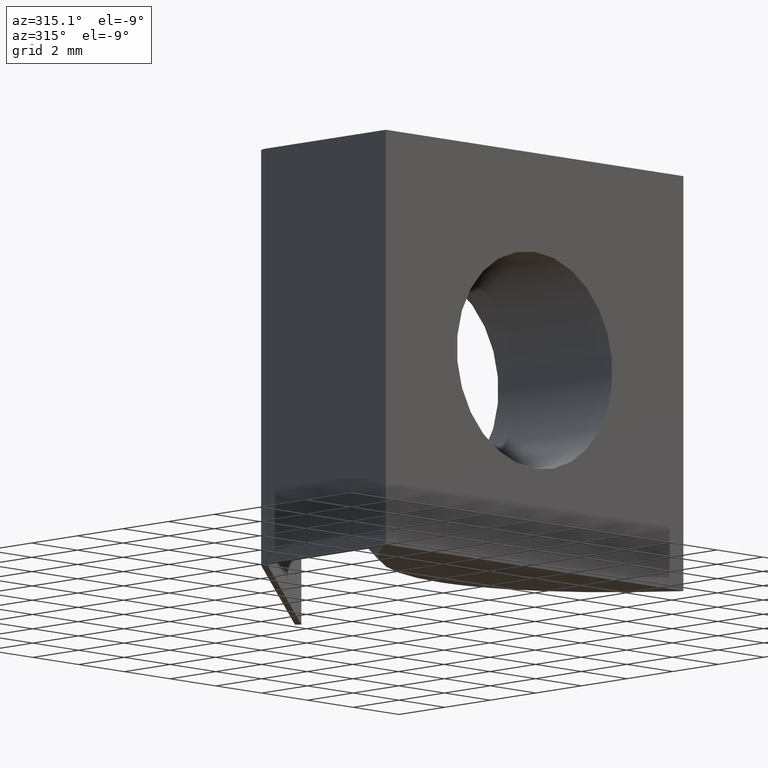
[diagram: clean part render]
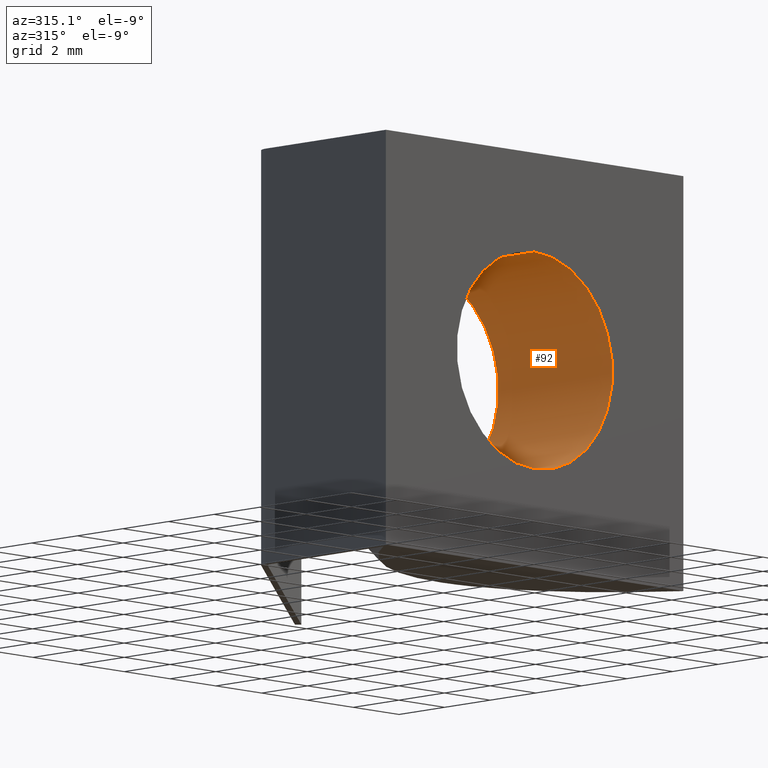
[diagram: same view with one face highlighted and labeled with its STEP entity id]
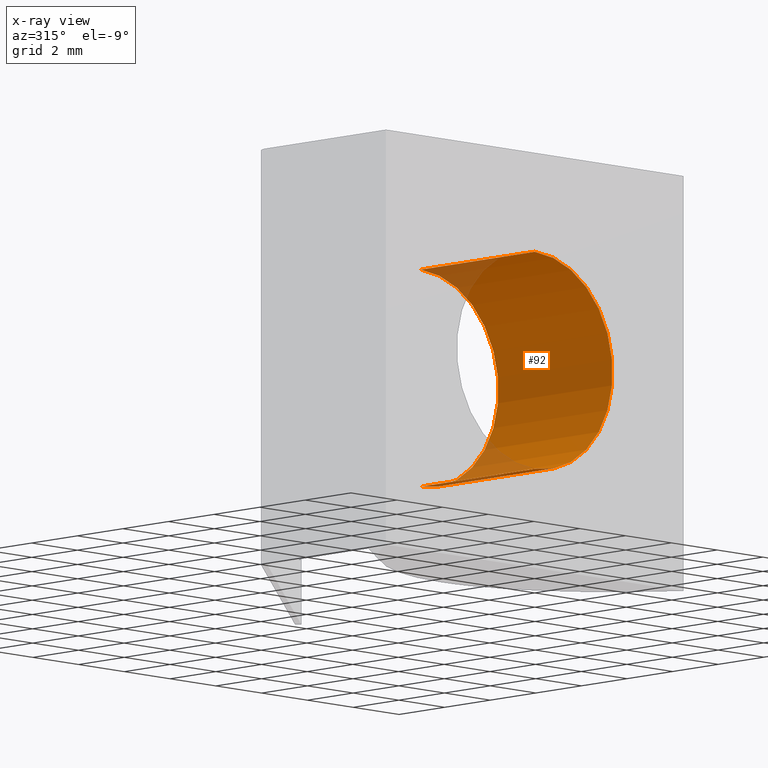
[diagram: x-ray of the same camera — body ghosted, the highlighted face saturated]
A machine part, auxiliary view. The second image highlights one B-rep face of the part: STEP entity #92.
The next image is the same camera in x-ray: the body ghosted, the highlighted face saturated — about 10% of this face is hidden behind the body in this view.
In plain terms, the highlighted cylindrical surface (partial cylindrical patch) has radius 3.4 mm, axis along (-0, 1, -0).
Its self-contained STEP definition (entity closure, byte-faithful):
#6 = EDGE_CURVE ( 'NONE', #222, #281, #162, .T. ) ;
#17 = EDGE_CURVE ( 'NONE', #281, #768, #743, .T. ) ;
#23 = EDGE_CURVE ( 'NONE', #222, #312, #615, .T. ) ;
#26 = EDGE_CURVE ( 'NONE', #768, #312, #163, .T. ) ;
#92 = ADVANCED_FACE ( 'NONE', ( #518 ), #654, .F. ) ;
#116 = AXIS2_PLACEMENT_3D ( 'NONE', #305, #221, #727 ) ;
#120 = VECTOR ( 'NONE', #510, 1000.000000000000000 ) ;
#130 = VECTOR ( 'NONE', #608, 1000.000000000000000 ) ;
#150 = AXIS2_PLACEMENT_3D ( 'NONE', #775, #539, #579 ) ;
#162 = CIRCLE ( 'NONE', #176, 3.399999999999999500 ) ;
#163 = CIRCLE ( 'NONE', #150, 3.399999999999999500 ) ;
#176 = AXIS2_PLACEMENT_3D ( 'NONE', #712, #383, #603 ) ;
#221 = DIRECTION ( 'NONE',  ( -0.0000000000000000000, 1.000000000000000000, -0.0000000000000000000 ) ) ;
#222 = VERTEX_POINT ( 'NONE', #725 ) ;
#267 = ORIENTED_EDGE ( 'NONE', *, *, #26, .T. ) ;
#272 = ORIENTED_EDGE ( 'NONE', *, *, #17, .T. ) ;
#274 = ORIENTED_EDGE ( 'NONE', *, *, #6, .T. ) ;
#275 = ORIENTED_EDGE ( 'NONE', *, *, #23, .F. ) ;
#281 = VERTEX_POINT ( 'NONE', #693 ) ;
#305 = CARTESIAN_POINT ( 'NONE',  ( 0.0000000000000000000, 5.000000000000000000, 0.0000000000000000000 ) ) ;
#312 = VERTEX_POINT ( 'NONE', #562 ) ;
#376 = CARTESIAN_POINT ( 'NONE',  ( 0.0000000000000000000, 5.000000000000000000, 3.399999999999999500 ) ) ;
#383 = DIRECTION ( 'NONE',  ( 0.0000000000000000000, -1.000000000000000000, 0.0000000000000000000 ) ) ;
#510 = DIRECTION ( 'NONE',  ( -0.0000000000000000000, 1.000000000000000000, -0.0000000000000000000 ) ) ;
#512 = CARTESIAN_POINT ( 'NONE',  ( 4.163799117101000100E-016, 5.000000000000000000, -3.399999999999999500 ) ) ;
#518 = FACE_OUTER_BOUND ( 'NONE', #609, .T. ) ;
#539 = DIRECTION ( 'NONE',  ( -0.0000000000000000000, 1.000000000000000000, -0.0000000000000000000 ) ) ;
#562 = CARTESIAN_POINT ( 'NONE',  ( 4.163799117101000100E-016, 5.000000000000000000, -3.399999999999999500 ) ) ;
#579 = DIRECTION ( 'NONE',  ( 0.0000000000000000000, 0.0000000000000000000, 1.000000000000000000 ) ) ;
#603 = DIRECTION ( 'NONE',  ( 0.0000000000000000000, 0.0000000000000000000, -1.000000000000000000 ) ) ;
#608 = DIRECTION ( 'NONE',  ( -0.0000000000000000000, 1.000000000000000000, -0.0000000000000000000 ) ) ;
#609 = EDGE_LOOP ( 'NONE', ( #275, #274, #272, #267 ) ) ;
#615 = LINE ( 'NONE', #512, #130 ) ;
#654 = CYLINDRICAL_SURFACE ( 'NONE', #116, 3.399999999999999500 ) ;
#693 = CARTESIAN_POINT ( 'NONE',  ( 0.0000000000000000000, 0.0000000000000000000, 3.399999999999999500 ) ) ;
#712 = CARTESIAN_POINT ( 'NONE',  ( 0.0000000000000000000, 0.0000000000000000000, 0.0000000000000000000 ) ) ;
#725 = CARTESIAN_POINT ( 'NONE',  ( 4.163799117101000100E-016, 0.0000000000000000000, -3.399999999999999500 ) ) ;
#727 = DIRECTION ( 'NONE',  ( 0.0000000000000000000, 0.0000000000000000000, 1.000000000000000000 ) ) ;
#743 = LINE ( 'NONE', #376, #120 ) ;
#768 = VERTEX_POINT ( 'NONE', #772 ) ;
#772 = CARTESIAN_POINT ( 'NONE',  ( 0.0000000000000000000, 5.000000000000000000, 3.399999999999999500 ) ) ;
#775 = CARTESIAN_POINT ( 'NONE',  ( 0.0000000000000000000, 5.000000000000000000, 0.0000000000000000000 ) ) ;